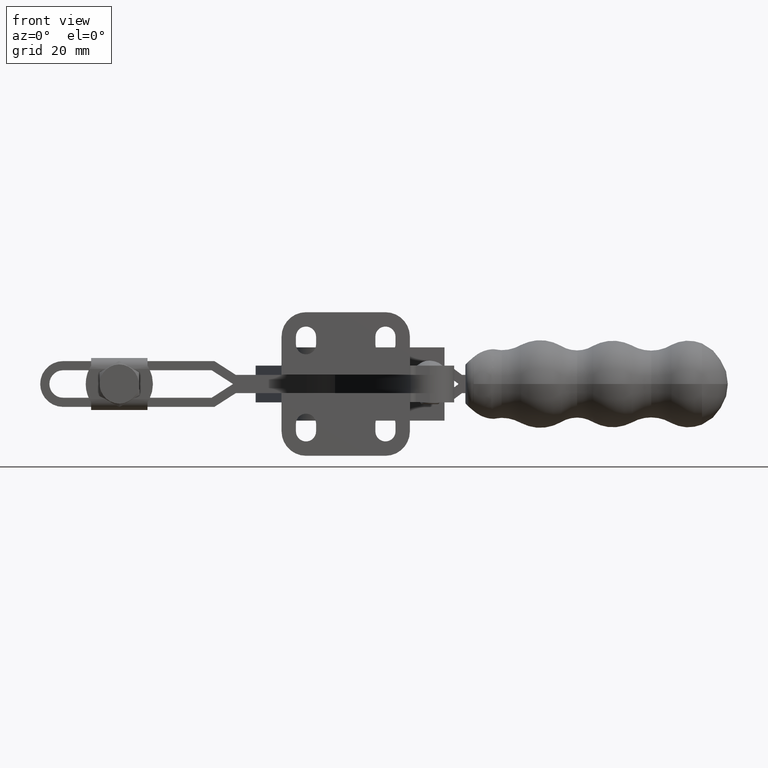
[diagram: clean part render]
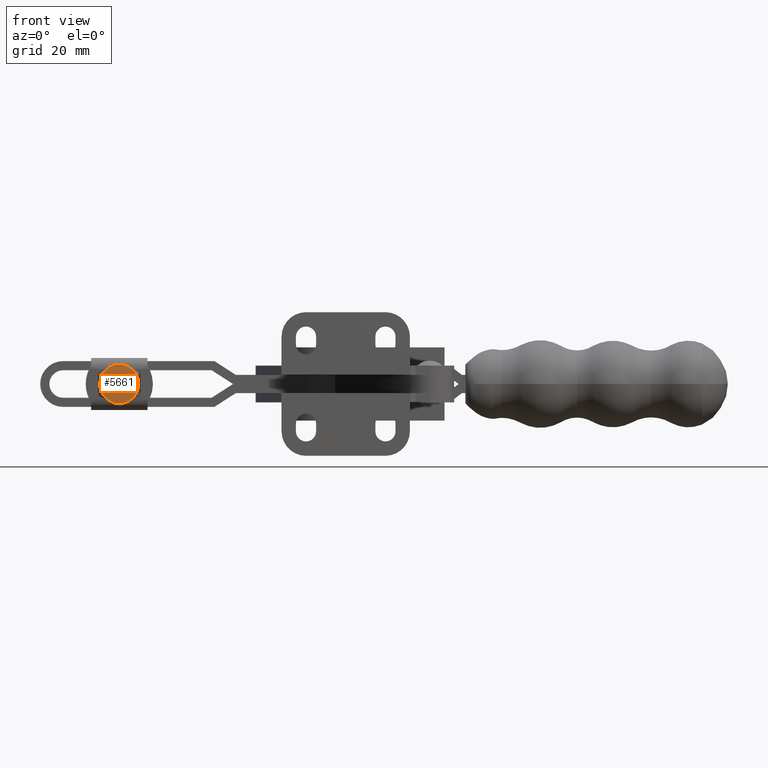
[diagram: same view with one face highlighted and labeled with its STEP entity id]
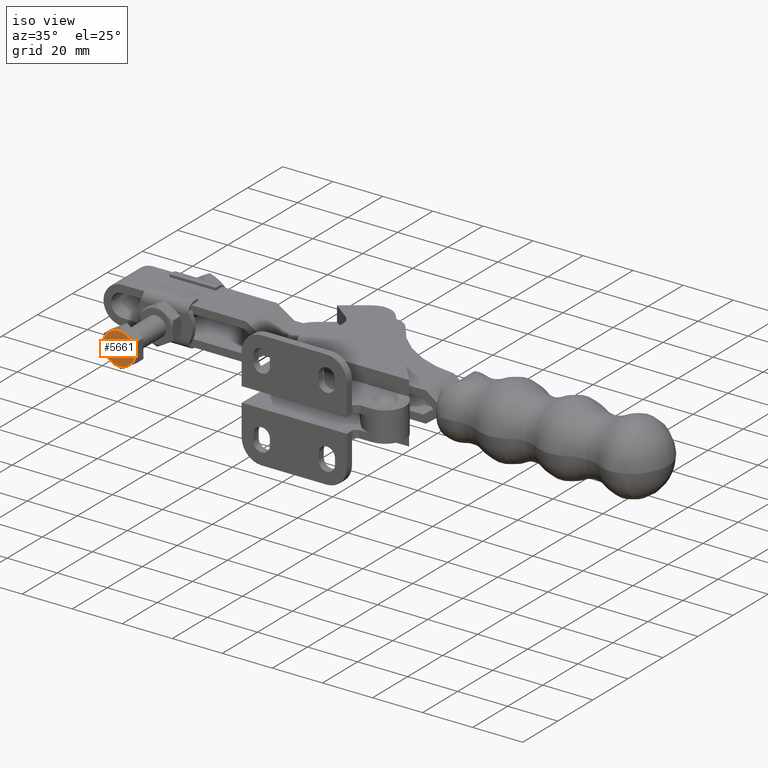
[diagram: same view with one face highlighted and labeled with its STEP entity id]
A machine part, front view. The second image highlights one B-rep face of the part: STEP entity #5661.
A second angle (iso view) of the same face is appended — the face is thin or edge-on in the first view.
In plain terms, the highlighted planar face has unit normal (-0.0003, 1, -0).
Its self-contained STEP definition (entity closure, byte-faithful):
#66 = EDGE_LOOP ( 'NONE', ( #11935, #4072 ) ) ;
#318 = DIRECTION ( 'NONE',  ( -0.0003083590043818411000, 0.9999999524573611700, -8.470329472543005300E-022 ) ) ;
#389 = FACE_OUTER_BOUND ( 'NONE', #66, .T. ) ;
#666 = CARTESIAN_POINT ( 'NONE',  ( -109.5265605472385900, 6.232413598538135700, -9.399189624932544600 ) ) ;
#694 = AXIS2_PLACEMENT_3D ( 'NONE', #6095, #318, #7044 ) ;
#1347 = AXIS2_PLACEMENT_3D ( 'NONE', #5192, #11861, #6174 ) ;
#2630 = CARTESIAN_POINT ( 'NONE',  ( -109.7302479859179300, 6.232350789679353300, 3.399189624932622300 ) ) ;
#2876 = CARTESIAN_POINT ( 'NONE',  ( -109.6284042665782600, 6.232382194108744500, -2.999999999999961800 ) ) ;
#3858 = DIRECTION ( 'NONE',  ( 0.01591308114682428100, 4.906942092372046700E-006, -0.9998733788957161500 ) ) ;
#4072 = ORIENTED_EDGE ( 'NONE', *, *, #10554, .T. ) ;
#4290 = CIRCLE ( 'NONE', #1347, 6.400000000000000400 ) ;
#5192 = CARTESIAN_POINT ( 'NONE',  ( -109.6284042665782600, 6.232382194108744500, -2.999999999999961800 ) ) ;
#5315 = VERTEX_POINT ( 'NONE', #666 ) ;
#5661 = ADVANCED_FACE ( 'NONE', ( #389 ), #7942, .F. ) ;
#5723 = EDGE_CURVE ( 'NONE', #5315, #10990, #4290, .T. ) ;
#6095 = CARTESIAN_POINT ( 'NONE',  ( -109.5089677846894300, 6.232419023425138400, -10.50460313799273800 ) ) ;
#6174 = DIRECTION ( 'NONE',  ( 0.01591308114682428100, 4.906942092372046700E-006, -0.9998733788957161500 ) ) ;
#7044 = DIRECTION ( 'NONE',  ( -0.01591308114682499600, -4.906942092371377600E-006, 0.9998733788957161500 ) ) ;
#7817 = CIRCLE ( 'NONE', #10039, 6.400000000000000400 ) ;
#7942 = PLANE ( 'NONE',  #694 ) ;
#9570 = DIRECTION ( 'NONE',  ( 0.0003083590043818411000, -0.9999999524573611700, 3.269872382338806300E-025 ) ) ;
#10039 = AXIS2_PLACEMENT_3D ( 'NONE', #2876, #9570, #3858 ) ;
#10554 = EDGE_CURVE ( 'NONE', #10990, #5315, #7817, .T. ) ;
#10990 = VERTEX_POINT ( 'NONE', #2630 ) ;
#11861 = DIRECTION ( 'NONE',  ( 0.0003083590043818411000, -0.9999999524573611700, 3.269872382338806300E-025 ) ) ;
#11935 = ORIENTED_EDGE ( 'NONE', *, *, #5723, .T. ) ;